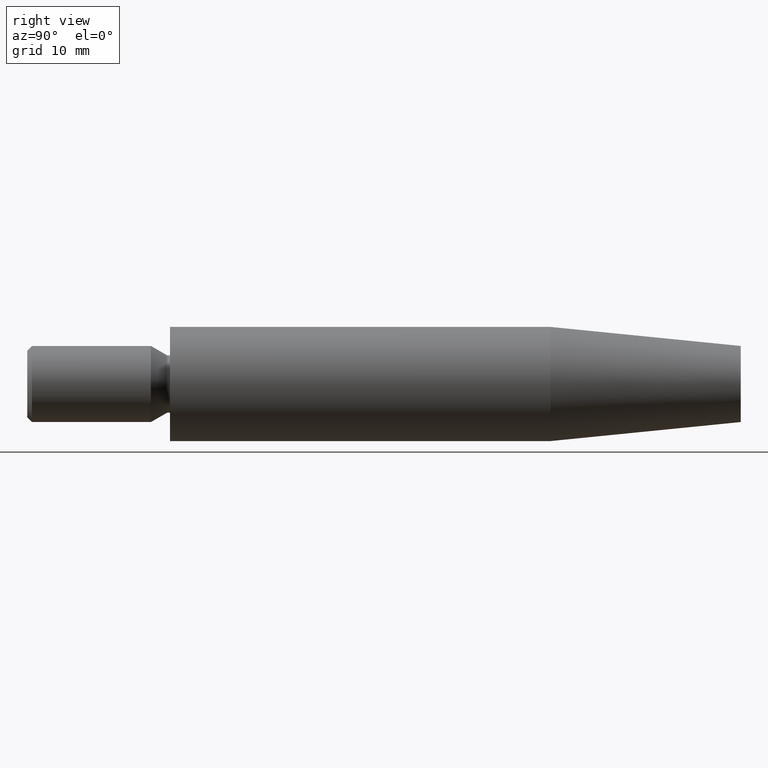
[diagram: clean part render]
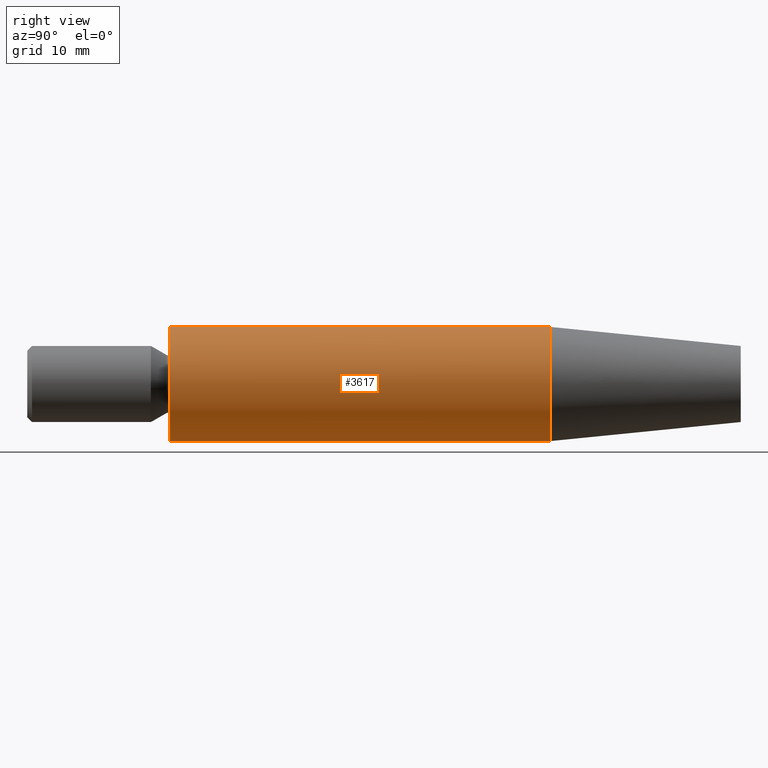
[diagram: same view with one face highlighted and labeled with its STEP entity id]
A machine part, right view. The second image highlights one B-rep face of the part: STEP entity #3617.
In plain terms, the highlighted cylindrical surface (bore or boss wall) has radius 6 mm, axis along (-0, -1, -0).
Its self-contained STEP definition (entity closure, byte-faithful):
#60 = EDGE_CURVE ( 'NONE', #12517, #12517, #9840, .T. ) ;
#389 = AXIS2_PLACEMENT_3D ( 'NONE', #5976, #10050, #7272 ) ;
#1355 = CARTESIAN_POINT ( 'NONE',  ( 0.000000000000000000, 40.00000000000000711, 0.000000000000000000 ) ) ;
#1729 = CYLINDRICAL_SURFACE ( 'NONE', #389, 6.000000000000004441 ) ;
#3617 = ADVANCED_FACE ( 'NONE', ( #8575, #6710 ), #1729, .T. ) ;
#4565 = VERTEX_POINT ( 'NONE', #12261 ) ;
#4755 = DIRECTION ( 'NONE',  ( 0.000000000000000000, 0.000000000000000000, -1.000000000000000000 ) ) ;
#5265 = EDGE_CURVE ( 'NONE', #4565, #4565, #11034, .T. ) ;
#5765 = AXIS2_PLACEMENT_3D ( 'NONE', #12584, #8671, #4755 ) ;
#5976 = CARTESIAN_POINT ( 'NONE',  ( 0.000000000000000000, -15.00000000000000355, 0.000000000000000000 ) ) ;
#6247 = DIRECTION ( 'NONE',  ( -0.000000000000000000, -1.000000000000000000, -0.000000000000000000 ) ) ;
#6334 = DIRECTION ( 'NONE',  ( 0.000000000000000000, 0.000000000000000000, -1.000000000000000000 ) ) ;
#6710 = FACE_OUTER_BOUND ( 'NONE', #8308, .T. ) ;
#7272 = DIRECTION ( 'NONE',  ( 0.000000000000000000, 0.000000000000000000, -1.000000000000000000 ) ) ;
#7339 = AXIS2_PLACEMENT_3D ( 'NONE', #1355, #6247, #6334 ) ;
#8068 = ORIENTED_EDGE ( 'NONE', *, *, #5265, .F. ) ;
#8308 = EDGE_LOOP ( 'NONE', ( #8068 ) ) ;
#8575 = FACE_OUTER_BOUND ( 'NONE', #8814, .T. ) ;
#8671 = DIRECTION ( 'NONE',  ( -0.000000000000000000, -1.000000000000000000, -0.000000000000000000 ) ) ;
#8814 = EDGE_LOOP ( 'NONE', ( #10460 ) ) ;
#9257 = CARTESIAN_POINT ( 'NONE',  ( 0.000000000000000000, 40.00000000000000711, -6.000000000000005329 ) ) ;
#9840 = CIRCLE ( 'NONE', #7339, 6.000000000000005329 ) ;
#10050 = DIRECTION ( 'NONE',  ( -0.000000000000000000, -1.000000000000000000, -0.000000000000000000 ) ) ;
#10460 = ORIENTED_EDGE ( 'NONE', *, *, #60, .T. ) ;
#11034 = CIRCLE ( 'NONE', #5765, 6.000000000000003553 ) ;
#12261 = CARTESIAN_POINT ( 'NONE',  ( 0.000000000000000000, 0.000000000000000000, -6.000000000000003553 ) ) ;
#12517 = VERTEX_POINT ( 'NONE', #9257 ) ;
#12584 = CARTESIAN_POINT ( 'NONE',  ( 0.000000000000000000, 0.000000000000000000, 0.000000000000000000 ) ) ;